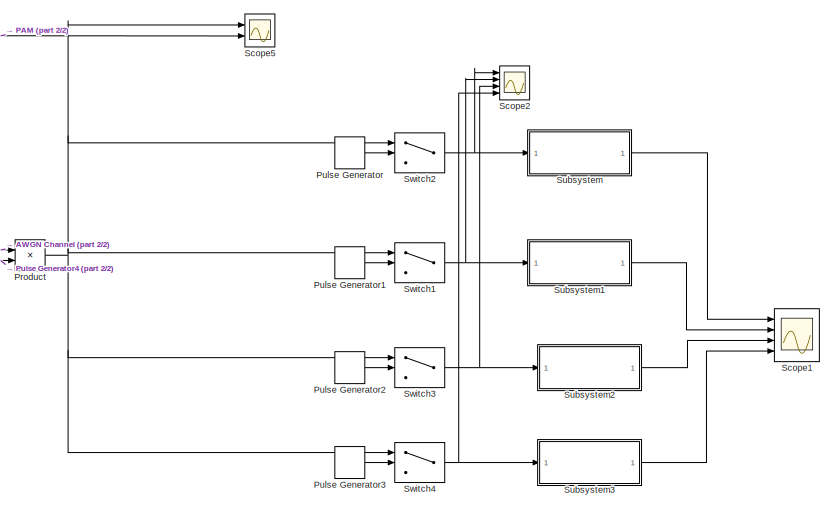
[diagram: root canvas - part 1/2, right side, full height]
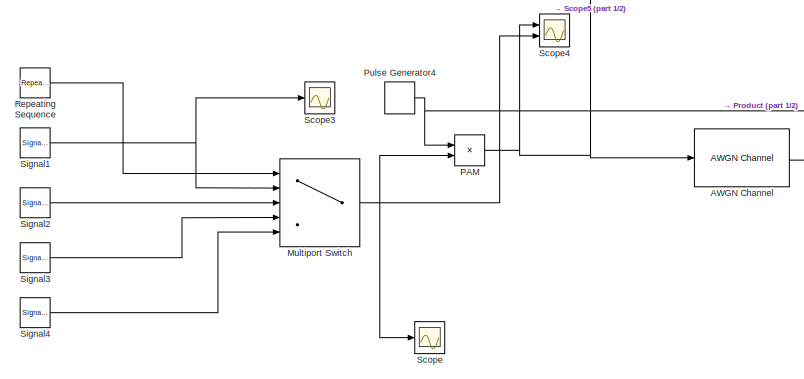
[diagram: root canvas - part 2/2, middle left region]
MODEL slx_e0810e6f5615
KIND model
CONFIG AbsTol = auto
CONFIG EnableMultiTasking = off
CONFIG FixedStep = 0.001
CONFIG MaxStep = 0.01
CONFIG MinStep = auto
CONFIG RelTol = 1e-3
CONFIG SampleTimeConstraint = Unconstrained
CONFIG Solver = VariableStepAuto
CONFIG SolverName = VariableStepAuto
CONFIG StartTime = 0.0
CONFIG StopTime = 8
BLOCK [Reference] AWGN Channel  REF=commchan3/AWGN
Channel
  Ports = [1, 1]
  SourceBlock = commchan3/AWGN\nChannel
  SourceProductBaseCode = CM
  SourceType = AWGN Channel
  UserDataPersistent = on
BLOCK [MultiPortSwitch] Multiport Switch
  DiagnosticForDefault = None
  InputSameDT = off
  Inputs = 4
  Ports = [5, 1]
  SaturateOnIntegerOverflow = off
BLOCK [Product] PAM
  Ports = [2, 1]
BLOCK [Product] Product
  Ports = [2, 1]
BLOCK [DiscretePulseGenerator] Pulse Generator
  Period = 4
  PhaseDelay = 0.05
  Ports = [0, 1]
  PulseType = Time based
  PulseWidth = 24
BLOCK [DiscretePulseGenerator] Pulse Generator1
  Period = 4
  PhaseDelay = 1
  Ports = [0, 1]
  PulseType = Time based
  PulseWidth = 25
BLOCK [DiscretePulseGenerator] Pulse Generator2
  Period = 4
  PhaseDelay = 2
  Ports = [0, 1]
  PulseType = Time based
  PulseWidth = 25
BLOCK [DiscretePulseGenerator] Pulse Generator3
  Period = 4
  PhaseDelay = 3
  Ports = [0, 1]
  PulseType = Time based
  PulseWidth = 25
BLOCK [DiscretePulseGenerator] Pulse Generator4
  Amplitude = 1.16
  Period = 1/30
  Ports = [0, 1]
  PulseType = Time based
  PulseWidth = 25
BLOCK [Reference] Repeating Sequence  REF=simulink/Sources/Repeating
Sequence
  Ports = [0, 1]
  SourceBlock = simulink/Sources/Repeating\nSequence
  SourceProductBaseCode = SL
  SourceType = Repeating table
BLOCK [Scope] Scope
  Floating = off
  NumInputPorts = 1
  Ports = [1]
  ScopeSpecificationString = Simulink.scopes.TimeScopeBlockCfg('CurrentConfiguration', extmgr.ConfigurationSet(extmgr.Configuration('Core','General UI',true),extmgr.Configuration('Core','Source UI',true),extmgr.Configuration('Sources','WiredSimulink',true,'DataLoggingVariableName','ScopeData2'),extmgr.Configuration('Visuals','Time Domain',true,'SerializedDisplays',{struct('MinYLimReal','-6.25','MaxYLimReal','6.25','YLabelReal...<+1405ch>
BLOCK [Scope] Scope1
  Floating = off
  NumInputPorts = 4
  Ports = [4]
  ScopeSpecificationString = Simulink.scopes.TimeScopeBlockCfg('CurrentConfiguration', extmgr.ConfigurationSet(extmgr.Configuration('Core','General UI',true),extmgr.Configuration('Core','Source UI',true),extmgr.Configuration('Sources','WiredSimulink',true),extmgr.Configuration('Visuals','Time Domain',true,'SerializedDisplays',{struct('MinYLimReal','-1.3924','MaxYLimReal','1.43308','YLabelReal','','MinYLimMag','0.00000','MaxYL...<+3447ch>
BLOCK [Scope] Scope2
  Floating = off
  NumInputPorts = 4
  Ports = [4]
  ScopeSpecificationString = Simulink.scopes.TimeScopeBlockCfg('CurrentConfiguration', extmgr.ConfigurationSet(extmgr.Configuration('Core','General UI',true),extmgr.Configuration('Core','Source UI',true),extmgr.Configuration('Sources','WiredSimulink',true,'DataLoggingVariableName','ScopeData1'),extmgr.Configuration('Visuals','Time Domain',true,'SerializedDisplays',{struct('MinYLimReal','-1.98371','MaxYLimReal','1.82764','YLab...<+3453ch>
BLOCK [Scope] Scope3
  Floating = off
  NumInputPorts = 1
  Ports = [1]
  ScopeSpecificationString = Simulink.scopes.TimeScopeBlockCfg('CurrentConfiguration', extmgr.ConfigurationSet(extmgr.Configuration('Core','General UI',true),extmgr.Configuration('Core','Source UI',true),extmgr.Configuration('Sources','WiredSimulink',true,'DataLoggingVariableName','ScopeData1'),extmgr.Configuration('Visuals','Time Domain',true,'SerializedDisplays',{struct('MinYLimReal','-1.24935','MaxYLimReal','1.24993','YLab...<+1414ch>
BLOCK [Scope] Scope4
  Floating = off
  NumInputPorts = 2
  Ports = [2]
  ScopeSpecificationString = Simulink.scopes.TimeScopeBlockCfg('CurrentConfiguration', extmgr.ConfigurationSet(extmgr.Configuration('Core','General UI',true),extmgr.Configuration('Core','Source UI',true),extmgr.Configuration('Sources','WiredSimulink',true,'DataLoggingVariableName','ScopeData2'),extmgr.Configuration('Visuals','Time Domain',true,'SerializedDisplays',{struct('MinYLimReal','-5.69105','MaxYLimReal','5.09718','YLab...<+2059ch>
BLOCK [Scope] Scope5
  Floating = off
  NumInputPorts = 2
  Ports = [2]
  ScopeSpecificationString = Simulink.scopes.TimeScopeBlockCfg('CurrentConfiguration', extmgr.ConfigurationSet(extmgr.Configuration('Core','General UI',true),extmgr.Configuration('Core','Source UI',true),extmgr.Configuration('Sources','WiredSimulink',true,'DataLoggingVariableName','ScopeData1'),extmgr.Configuration('Visuals','Time Domain',true,'SerializedDisplays',{struct('MinYLimReal','-8.02622','MaxYLimReal','7.23397','YLab...<+2079ch>
BLOCK [SignalGenerator] Signal1
  Frequency = 10
  Ports = [0, 1]
BLOCK [SignalGenerator] Signal2 
  Amplitude = 2
  Frequency = 10
  Ports = [0, 1]
BLOCK [SignalGenerator] Signal3
  Amplitude = 3
  Frequency = 10
  Ports = [0, 1]
BLOCK [SignalGenerator] Signal4 
  Amplitude = 4
  Frequency = 10
  Ports = [0, 1]
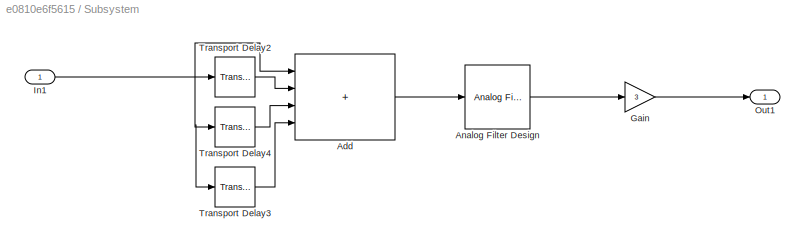
BLOCK [SubSystem] Subsystem
  Ports = [1, 1]
  RequestExecContextInheritance = off
BLOCK [Sum] Subsystem/Add
  IconShape = rectangular
  Inputs = ++++
  Ports = [4, 1]
BLOCK [Reference] Subsystem/Analog Filter Design  REF=dsparch4/Analog
Filter Design
  Ports = [1, 1]
  SourceBlock = dsparch4/Analog\nFilter Design
  SourceProductBaseCode = DS
  SourceType = Analog Filter Design
BLOCK [Gain] Subsystem/Gain
  Gain = 3
BLOCK [Inport] Subsystem/In1
BLOCK [Outport] Subsystem/Out1
  VectorParamsAs1DForOutWhenUnconnected = off
BLOCK [TransportDelay] Subsystem/Transport Delay2
  Ports = [1, 1]
BLOCK [TransportDelay] Subsystem/Transport Delay3
  DelayTime = 3
  Ports = [1, 1]
BLOCK [TransportDelay] Subsystem/Transport Delay4
  DelayTime = 2
  Ports = [1, 1]
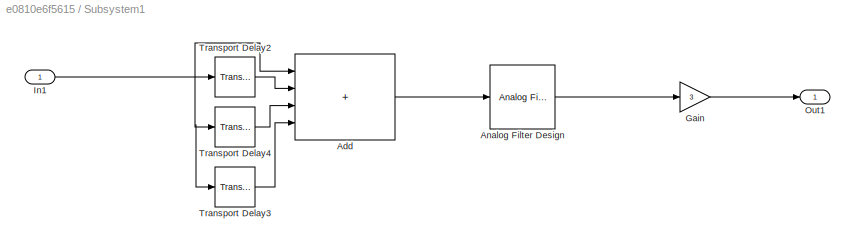
BLOCK [SubSystem] Subsystem1
  Ports = [1, 1]
  RequestExecContextInheritance = off
BLOCK [Sum] Subsystem1/Add
  IconShape = rectangular
  Inputs = ++++
  Ports = [4, 1]
BLOCK [Reference] Subsystem1/Analog Filter Design  REF=dsparch4/Analog
Filter Design
  Ports = [1, 1]
  SourceBlock = dsparch4/Analog\nFilter Design
  SourceProductBaseCode = DS
  SourceType = Analog Filter Design
BLOCK [Gain] Subsystem1/Gain
  Gain = 3
BLOCK [Inport] Subsystem1/In1
BLOCK [Outport] Subsystem1/Out1
  VectorParamsAs1DForOutWhenUnconnected = off
BLOCK [TransportDelay] Subsystem1/Transport Delay2
  Ports = [1, 1]
BLOCK [TransportDelay] Subsystem1/Transport Delay3
  DelayTime = 3
  Ports = [1, 1]
BLOCK [TransportDelay] Subsystem1/Transport Delay4
  DelayTime = 2
  Ports = [1, 1]
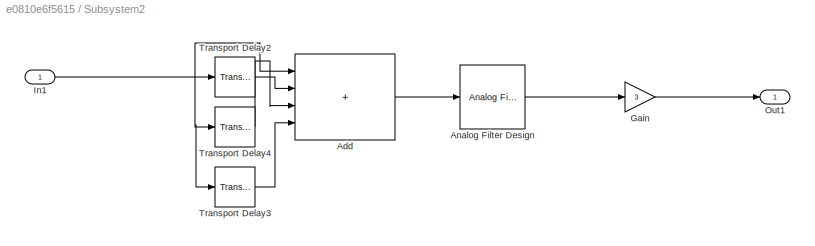
BLOCK [SubSystem] Subsystem2
  Ports = [1, 1]
  RequestExecContextInheritance = off
BLOCK [Sum] Subsystem2/Add
  IconShape = rectangular
  Inputs = ++++
  Ports = [4, 1]
BLOCK [Reference] Subsystem2/Analog Filter Design  REF=dsparch4/Analog
Filter Design
  Ports = [1, 1]
  SourceBlock = dsparch4/Analog\nFilter Design
  SourceProductBaseCode = DS
  SourceType = Analog Filter Design
BLOCK [Gain] Subsystem2/Gain
  Gain = 3
BLOCK [Inport] Subsystem2/In1
BLOCK [Outport] Subsystem2/Out1
BLOCK [TransportDelay] Subsystem2/Transport Delay2
  Ports = [1, 1]
BLOCK [TransportDelay] Subsystem2/Transport Delay3
  DelayTime = 3
  Ports = [1, 1]
BLOCK [TransportDelay] Subsystem2/Transport Delay4
  DelayTime = 2
  Ports = [1, 1]
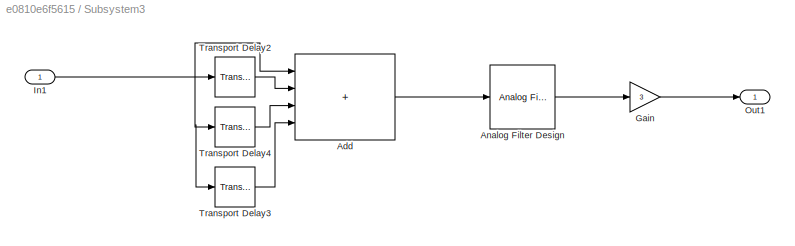
BLOCK [SubSystem] Subsystem3
  Ports = [1, 1]
  RequestExecContextInheritance = off
BLOCK [Sum] Subsystem3/Add
  IconShape = rectangular
  Inputs = ++++
  Ports = [4, 1]
BLOCK [Reference] Subsystem3/Analog Filter Design  REF=dsparch4/Analog
Filter Design
  Ports = [1, 1]
  SourceBlock = dsparch4/Analog\nFilter Design
  SourceProductBaseCode = DS
  SourceType = Analog Filter Design
BLOCK [Gain] Subsystem3/Gain
  Gain = 3
BLOCK [Inport] Subsystem3/In1
BLOCK [Outport] Subsystem3/Out1
  VectorParamsAs1DForOutWhenUnconnected = off
BLOCK [TransportDelay] Subsystem3/Transport Delay2
  Ports = [1, 1]
BLOCK [TransportDelay] Subsystem3/Transport Delay3
  DelayTime = 3
  Ports = [1, 1]
BLOCK [TransportDelay] Subsystem3/Transport Delay4
  DelayTime = 2
  Ports = [1, 1]
BLOCK [Switch] Switch1
  Criteria = u2 > Threshold
  InputSameDT = off
  SaturateOnIntegerOverflow = off
  Threshold = 0.25
BLOCK [Switch] Switch2
  Criteria = u2 > Threshold
  InputSameDT = off
  SaturateOnIntegerOverflow = off
  Threshold = 0.25
BLOCK [Switch] Switch3
  Criteria = u2 > Threshold
  InputSameDT = off
  SaturateOnIntegerOverflow = off
  Threshold = 0.25
BLOCK [Switch] Switch4
  Criteria = u2 > Threshold
  InputSameDT = off
  SaturateOnIntegerOverflow = off
  Threshold = 0.25
LINE AWGN Channel:1 -> Product:1
NET Multiport Switch:1 -> PAM:2, Scope4:2, Scope:1
NET PAM:1 -> AWGN Channel:1, Scope4:1, Scope5:2
NET Product:1 -> Scope5:1, Switch1:1, Switch2:1, Switch3:1, Switch4:1
LINE Pulse Generator1:1 -> Switch1:2
LINE Pulse Generator2:1 -> Switch3:2
LINE Pulse Generator3:1 -> Switch4:2
NET Pulse Generator4:1 -> PAM:1, Product:2
LINE Pulse Generator:1 -> Switch2:2
LINE Repeating Sequence:1 -> Multiport Switch:1
NET Signal1:1 -> Multiport Switch:2, Scope3:1
LINE Signal2 :1 -> Multiport Switch:3
LINE Signal3:1 -> Multiport Switch:4
LINE Signal4 :1 -> Multiport Switch:5
LINE Subsystem/Add:1 -> Subsystem/Analog Filter Design:1
LINE Subsystem/Analog Filter Design:1 -> Subsystem/Gain:1
LINE Subsystem/Gain:1 -> Subsystem/Out1:1
NET Subsystem/In1:1 -> Subsystem/Add:1, Subsystem/Transport Delay2:1, Subsystem/Transport Delay3:1, Subsystem/Transport Delay4:1
LINE Subsystem/Transport Delay2:1 -> Subsystem/Add:2
LINE Subsystem/Transport Delay3:1 -> Subsystem/Add:4
LINE Subsystem/Transport Delay4:1 -> Subsystem/Add:3
LINE Subsystem1/Add:1 -> Subsystem1/Analog Filter Design:1
LINE Subsystem1/Analog Filter Design:1 -> Subsystem1/Gain:1
LINE Subsystem1/Gain:1 -> Subsystem1/Out1:1
NET Subsystem1/In1:1 -> Subsystem1/Add:1, Subsystem1/Transport Delay2:1, Subsystem1/Transport Delay3:1, Subsystem1/Transport Delay4:1
LINE Subsystem1/Transport Delay2:1 -> Subsystem1/Add:2
LINE Subsystem1/Transport Delay3:1 -> Subsystem1/Add:4
LINE Subsystem1/Transport Delay4:1 -> Subsystem1/Add:3
LINE Subsystem1:1 -> Scope1:2
LINE Subsystem2/Add:1 -> Subsystem2/Analog Filter Design:1
LINE Subsystem2/Analog Filter Design:1 -> Subsystem2/Gain:1
LINE Subsystem2/Gain:1 -> Subsystem2/Out1:1
NET Subsystem2/In1:1 -> Subsystem2/Add:1, Subsystem2/Transport Delay2:1, Subsystem2/Transport Delay3:1, Subsystem2/Transport Delay4:1
LINE Subsystem2/Transport Delay2:1 -> Subsystem2/Add:2
LINE Subsystem2/Transport Delay3:1 -> Subsystem2/Add:4
LINE Subsystem2/Transport Delay4:1 -> Subsystem2/Add:3
LINE Subsystem2:1 -> Scope1:3
LINE Subsystem3/Add:1 -> Subsystem3/Analog Filter Design:1
LINE Subsystem3/Analog Filter Design:1 -> Subsystem3/Gain:1
LINE Subsystem3/Gain:1 -> Subsystem3/Out1:1
NET Subsystem3/In1:1 -> Subsystem3/Add:1, Subsystem3/Transport Delay2:1, Subsystem3/Transport Delay3:1, Subsystem3/Transport Delay4:1
LINE Subsystem3/Transport Delay2:1 -> Subsystem3/Add:2
LINE Subsystem3/Transport Delay3:1 -> Subsystem3/Add:4
LINE Subsystem3/Transport Delay4:1 -> Subsystem3/Add:3
LINE Subsystem3:1 -> Scope1:4
LINE Subsystem:1 -> Scope1:1
NET Switch1:1 -> Scope2:2, Subsystem1:1
NET Switch2:1 -> Scope2:1, Subsystem:1
NET Switch3:1 -> Scope2:3, Subsystem2:1
NET Switch4:1 -> Scope2:4, Subsystem3:1
note: NET lines group one-source signal fan-out (src -> all destinations, sorted); 1:1 wires keep LINE
